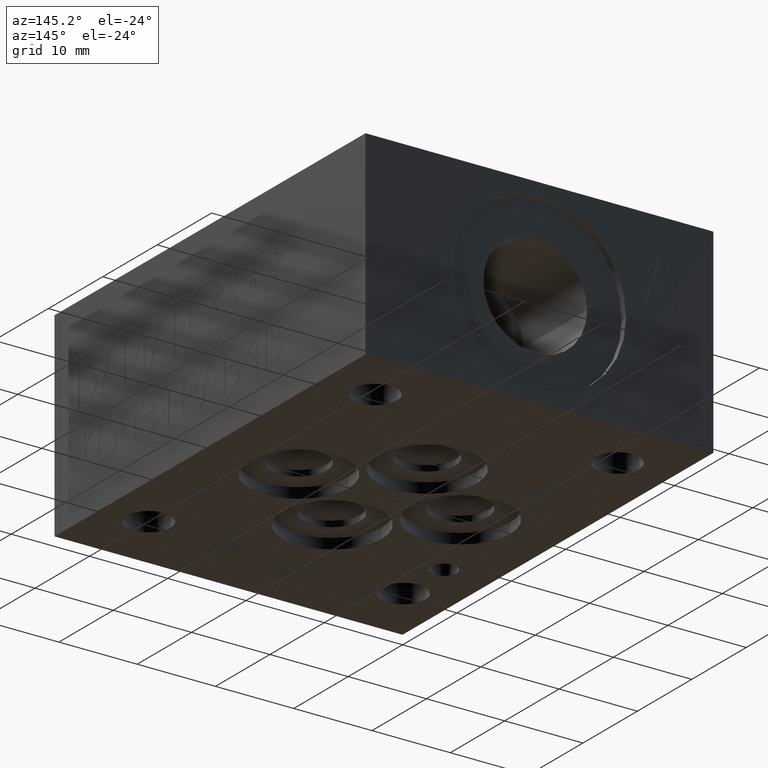
[diagram: clean part render]
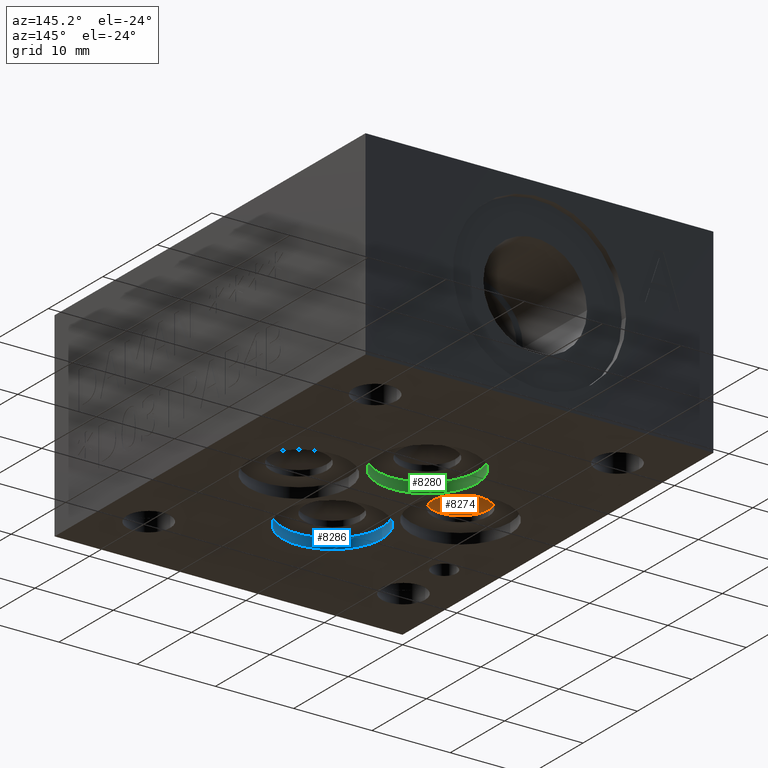
[diagram: same view with three faces highlighted in distinct colors, each labeled with its STEP entity id]
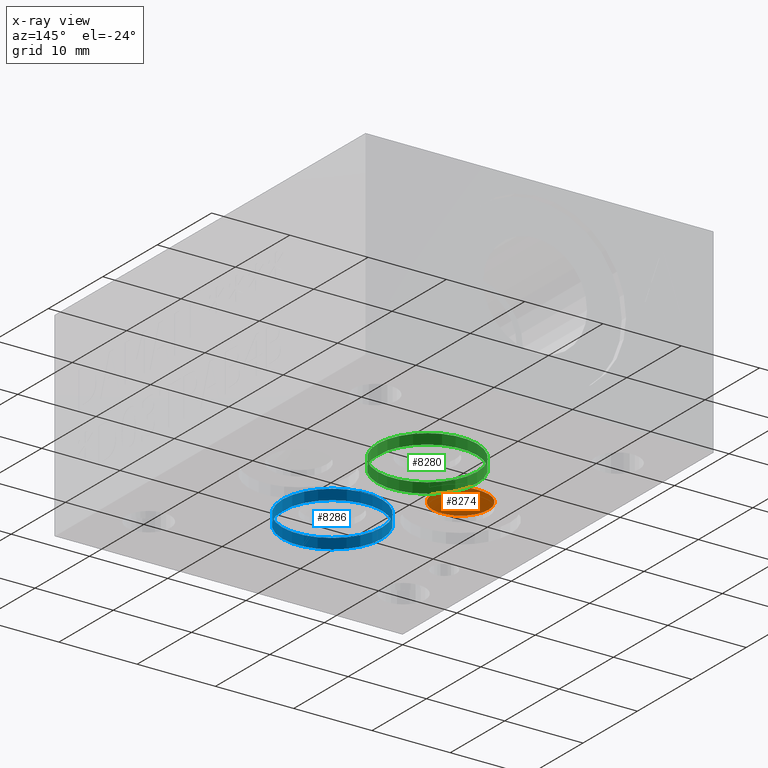
[diagram: x-ray of the same camera — body ghosted, the three highlighted faces saturated]
A machine part, auxiliary view with three faces highlighted in distinct colors.
The next image is the same camera in x-ray (body ghosted, the three faces saturated) — at least one of them is partly hidden behind the body in this view.
Their STEP definitions:

[orange] entity #8274 — the highlighted conical surface has half-angle 60 deg.
#44=CONICAL_SURFACE('',#8628,1.78435,1.0471975511966);
#64=CIRCLE('',#8629,3.5687);
#844=FACE_OUTER_BOUND('',#1312,.T.);
#1312=EDGE_LOOP('',(#7213,#7214,#7215));
#2216=LINE('',#13736,#3082);
#3082=VECTOR('',#10127,1.78435);
#4006=VERTEX_POINT('',#13733);
#4007=VERTEX_POINT('',#13735);
#5095=EDGE_CURVE('',#4006,#4006,#64,.T.);
#5096=EDGE_CURVE('',#4006,#4007,#2216,.T.);
#7213=ORIENTED_EDGE('',*,*,#5095,.T.);
#7214=ORIENTED_EDGE('',*,*,#5096,.T.);
#7215=ORIENTED_EDGE('',*,*,#5096,.F.);
#8274=ADVANCED_FACE('',(#844),#44,.F.);
#8628=AXIS2_PLACEMENT_3D('',#13732,#10123,#10124);
#8629=AXIS2_PLACEMENT_3D('',#13734,#10125,#10126);
#10123=DIRECTION('center_axis',(0.,0.,-1.));
#10124=DIRECTION('ref_axis',(1.,0.,0.));
#10125=DIRECTION('center_axis',(0.,0.,-1.));
#10126=DIRECTION('ref_axis',(1.,0.,0.));
#10127=DIRECTION('',(0.866025403784439,-1.06057523872491E-16,0.5));
#13732=CARTESIAN_POINT('Origin',(11.9126,27.8003,3.09058495282851));
#13733=CARTESIAN_POINT('',(8.3439,27.8003,2.06039));
#13734=CARTESIAN_POINT('Origin',(11.9126,27.8003,2.06039));
#13735=CARTESIAN_POINT('',(11.9126,27.8003,4.12077990565702));
#13736=CARTESIAN_POINT('',(10.12825,27.8003,3.09058495282851));

[blue] entity #8286 — the highlighted cylindrical surface (bore or boss wall) has radius 6.35 mm, axis along (0, 0, -1).
#21=CYLINDRICAL_SURFACE('',#8652,6.35);
#76=CIRCLE('',#8653,6.35);
#77=CIRCLE('',#8654,6.35);
#856=FACE_OUTER_BOUND('',#1327,.T.);
#1327=EDGE_LOOP('',(#7252,#7253,#7254,#7255));
#2225=LINE('',#13784,#3091);
#3091=VECTOR('',#10184,6.35);
#4021=VERTEX_POINT('',#13781);
#4022=VERTEX_POINT('',#13783);
#5116=EDGE_CURVE('',#4021,#4021,#76,.T.);
#5117=EDGE_CURVE('',#4021,#4022,#2225,.T.);
#5118=EDGE_CURVE('',#4022,#4022,#77,.T.);
#7252=ORIENTED_EDGE('',*,*,#5116,.F.);
#7253=ORIENTED_EDGE('',*,*,#5117,.T.);
#7254=ORIENTED_EDGE('',*,*,#5118,.F.);
#7255=ORIENTED_EDGE('',*,*,#5117,.F.);
#8286=ADVANCED_FACE('',(#856),#21,.F.);
#8652=AXIS2_PLACEMENT_3D('',#13780,#10180,#10181);
#8653=AXIS2_PLACEMENT_3D('',#13782,#10182,#10183);
#8654=AXIS2_PLACEMENT_3D('',#13785,#10185,#10186);
#10180=DIRECTION('center_axis',(0.,0.,-1.));
#10181=DIRECTION('ref_axis',(1.,0.,0.));
#10182=DIRECTION('center_axis',(0.,0.,1.));
#10183=DIRECTION('ref_axis',(1.,0.,0.));
#10184=DIRECTION('',(0.,0.,1.));
#10185=DIRECTION('center_axis',(0.,0.,-1.));
#10186=DIRECTION('ref_axis',(1.,0.,0.));
#13780=CARTESIAN_POINT('Origin',(22.225,19.0627,0.6604));
#13781=CARTESIAN_POINT('',(15.875,19.0627,0.));
#13782=CARTESIAN_POINT('Origin',(22.225,19.0627,0.));
#13783=CARTESIAN_POINT('',(15.875,19.0627,1.3208));
#13784=CARTESIAN_POINT('',(15.875,19.0627,0.6604));
#13785=CARTESIAN_POINT('Origin',(22.225,19.0627,1.3208));

[green] entity #8280 — the highlighted cylindrical surface (bore or boss wall) has radius 6.35 mm, axis along (0, 0, -1).
#18=CYLINDRICAL_SURFACE('',#8640,6.35);
#70=CIRCLE('',#8641,6.35);
#71=CIRCLE('',#8642,6.35);
#850=FACE_OUTER_BOUND('',#1318,.T.);
#1318=EDGE_LOOP('',(#7234,#7235,#7236,#7237));
#2222=LINE('',#13763,#3088);
#3088=VECTOR('',#10157,6.35);
#4015=VERTEX_POINT('',#13760);
#4016=VERTEX_POINT('',#13762);
#5107=EDGE_CURVE('',#4015,#4015,#70,.T.);
#5108=EDGE_CURVE('',#4015,#4016,#2222,.T.);
#5109=EDGE_CURVE('',#4016,#4016,#71,.T.);
#7234=ORIENTED_EDGE('',*,*,#5107,.F.);
#7235=ORIENTED_EDGE('',*,*,#5108,.T.);
#7236=ORIENTED_EDGE('',*,*,#5109,.F.);
#7237=ORIENTED_EDGE('',*,*,#5108,.F.);
#8280=ADVANCED_FACE('',(#850),#18,.F.);
#8640=AXIS2_PLACEMENT_3D('',#13759,#10153,#10154);
#8641=AXIS2_PLACEMENT_3D('',#13761,#10155,#10156);
#8642=AXIS2_PLACEMENT_3D('',#13764,#10158,#10159);
#10153=DIRECTION('center_axis',(0.,0.,-1.));
#10154=DIRECTION('ref_axis',(1.,0.,0.));
#10155=DIRECTION('center_axis',(0.,0.,1.));
#10156=DIRECTION('ref_axis',(1.,0.,0.));
#10157=DIRECTION('',(0.,0.,1.));
#10158=DIRECTION('center_axis',(0.,0.,-1.));
#10159=DIRECTION('ref_axis',(1.,0.,0.));
#13759=CARTESIAN_POINT('Origin',(22.225,36.5379,0.6604));
#13760=CARTESIAN_POINT('',(15.875,36.5379,0.));
#13761=CARTESIAN_POINT('Origin',(22.225,36.5379,0.));
#13762=CARTESIAN_POINT('',(15.875,36.5379,1.3208));
#13763=CARTESIAN_POINT('',(15.875,36.5379,0.6604));
#13764=CARTESIAN_POINT('Origin',(22.225,36.5379,1.3208));